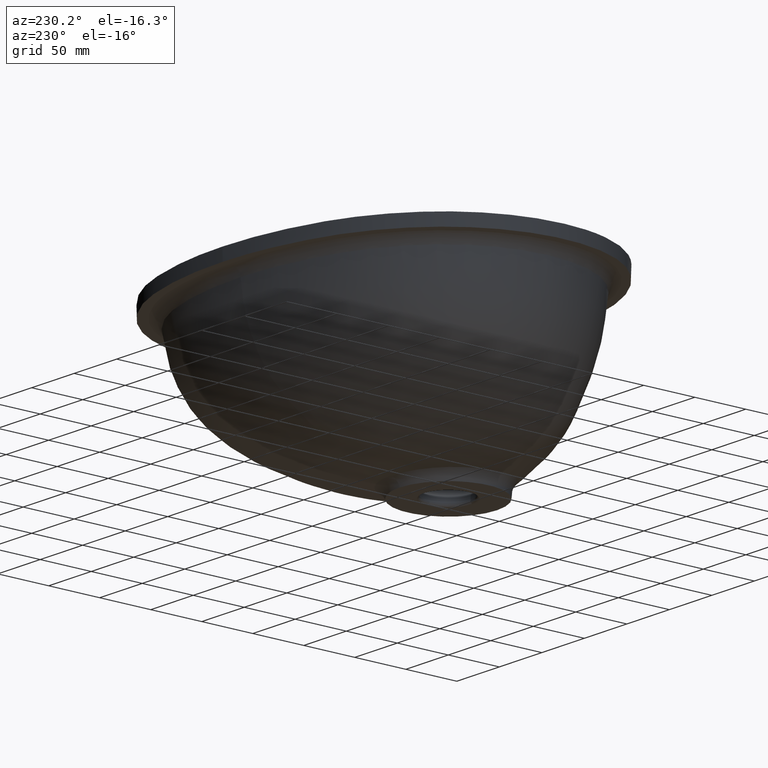
[diagram: clean part render]
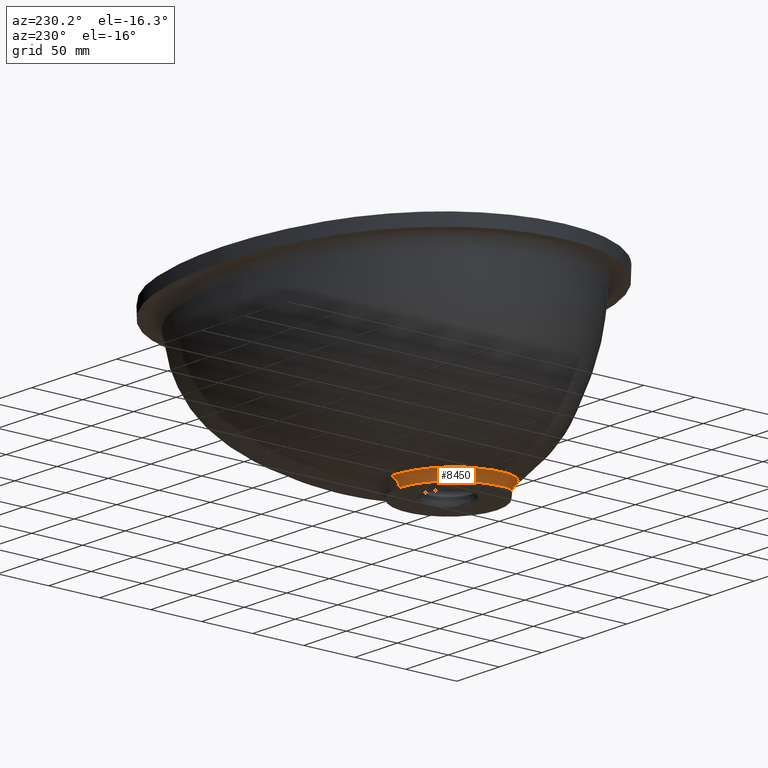
[diagram: same view with one face highlighted and labeled with its STEP entity id]
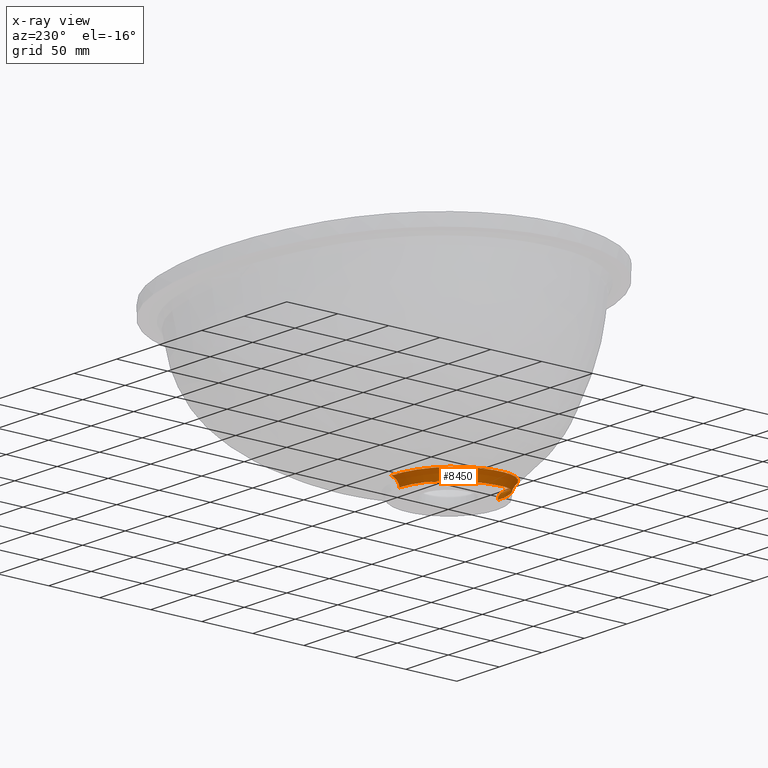
[diagram: x-ray of the same camera — body ghosted, the highlighted face saturated]
A machine part, auxiliary view. The second image highlights one B-rep face of the part: STEP entity #8450.
The next image is the same camera in x-ray: the body ghosted, the highlighted face saturated — about 0% of this face is hidden behind the body in this view.
In plain terms, the highlighted face is a freeform B-spline surface patch.
Its self-contained STEP definition (entity closure, byte-faithful):
#4 = CARTESIAN_POINT ( 'NONE',  ( -1.651484723291576800E-012, 47.98355849915914500, -16.69493183058871800 ) ) ;
#75 = CARTESIAN_POINT ( 'NONE',  ( -6.284882652245053200, 47.27075112057448100, -18.88585151444310400 ) ) ;
#91 = CARTESIAN_POINT ( 'NONE',  ( 4.794256002465258000E-015, -48.72728784986528400, -5.821774171686544500 ) ) ;
#99 = CARTESIAN_POINT ( 'NONE',  ( -32.60775405703462600, 34.85846684452303600, -17.67819926235676300 ) ) ;
#109 = CARTESIAN_POINT ( 'NONE',  ( -49.18675450095849300, 25.89372714503306500, -8.568576147560333900 ) ) ;
#128 = CARTESIAN_POINT ( 'NONE',  ( -19.83566974656168500, -44.07818573549389600, -10.37164150315078900 ) ) ;
#148 = CARTESIAN_POINT ( 'NONE',  ( -54.28136444620005100, 11.67774297453715200, -8.220331746998233800 ) ) ;
#165 = CARTESIAN_POINT ( 'NONE',  ( -19.11274034580327500, -44.40192643876641700, -10.31333426546262500 ) ) ;
#178 = CARTESIAN_POINT ( 'NONE',  ( -27.44180876963656200, 39.03310254539847100, -17.67819926235675600 ) ) ;
#188 = CARTESIAN_POINT ( 'NONE',  ( -52.05757467760659600, 19.39559780693819800, -8.402799328488422100 ) ) ;
#190 = VERTEX_POINT ( 'NONE', #7092 ) ;
#224 = CARTESIAN_POINT ( 'NONE',  ( -54.53103141245460300, -7.773425210642488800, -7.302278464543669600 ) ) ;
#242 = CARTESIAN_POINT ( 'NONE',  ( -8.532536275593537700, -50.89601182746157100, -3.250871982103479100 ) ) ;
#259 = CARTESIAN_POINT ( 'NONE',  ( -50.40985847699813900, -20.35124467259259300, -6.287651768492426500 ) ) ;
#276 = CARTESIAN_POINT ( 'NONE',  ( -47.68880689654583400, -8.557905983029499500, -9.093369314500533200 ) ) ;
#292 = CARTESIAN_POINT ( 'NONE',  ( -31.92788967241984800, -41.61755122038304900, -4.119373704766316800 ) ) ;
#310 = CARTESIAN_POINT ( 'NONE',  ( -45.26879745716150400, -15.78355227485999500, -15.09156870994900000 ) ) ;
#345 = CARTESIAN_POINT ( 'NONE',  ( -50.01292368876095700, -21.10639340289816700, -6.216722687833315500 ) ) ;
#380 = CARTESIAN_POINT ( 'NONE',  ( -52.72155545273996300, -14.64732418870927300, -6.782660484253892000 ) ) ;
#416 = CARTESIAN_POINT ( 'NONE',  ( -54.34141130905143800, -8.729846914517130700, -7.236327676205767100 ) ) ;
#451 = CARTESIAN_POINT ( 'NONE',  ( -48.30583873658457600, 3.111301049346927100, -9.582985112581377900 ) ) ;
#468 = CARTESIAN_POINT ( 'NONE',  ( -46.09127100818879800, 12.42463142147834000, -17.18239904405537600 ) ) ;
#484 = CARTESIAN_POINT ( 'NONE',  ( -46.78122337502973200, 12.33103340632098700, -9.878548080878939400 ) ) ;
#503 = CARTESIAN_POINT ( 'NONE',  ( -32.03900678106534600, -36.02398132861244300, -11.87519893921761800 ) ) ;
#519 = CARTESIAN_POINT ( 'NONE',  ( -45.55247881492950100, 14.27033161844205700, -17.23250606230181200 ) ) ;
#536 = CARTESIAN_POINT ( 'NONE',  ( -40.05692412907704600, 25.91520596641482800, -17.60756509481977300 ) ) ;
#553 = CARTESIAN_POINT ( 'NONE',  ( -48.32586375780706300, -3.130411685881480100, -9.347101245615663200 ) ) ;
#571 = CARTESIAN_POINT ( 'NONE',  ( -47.50093216294006700, -5.542673487181347400, -16.19172364973611200 ) ) ;
#586 = CARTESIAN_POINT ( 'NONE',  ( -28.12045848820239500, 39.28756031639147000, -10.62331978347983800 ) ) ;
#619 = CARTESIAN_POINT ( 'NONE',  ( -47.26761612005093100, 29.26038955927268500, -8.663956889114041700 ) ) ;
#653 = CARTESIAN_POINT ( 'NONE',  ( -48.64599797775689900, 26.86712663822031600, -8.595858616643345900 ) ) ;
#691 = CARTESIAN_POINT ( 'NONE',  ( -19.62348816171611100, 52.38639844541108900, -9.623500310790261000 ) ) ;
#729 = CARTESIAN_POINT ( 'NONE',  ( -29.79728428911821700, 37.19453988478311100, -18.11543220594386800 ) ) ;
#813 = CARTESIAN_POINT ( 'NONE',  ( -1.404724726711566700E-012, 48.34645608571556600, -15.74425115618719900 ) ) ;
#850 = CARTESIAN_POINT ( 'NONE',  ( -7.275556905732548400, 55.67892801729478000, -9.873048805123811900 ) ) ;
#855 = CARTESIAN_POINT ( 'NONE',  ( -9.478295589564850400E-013, 49.33860431032496800, -13.99351430750385600 ) ) ;
#931 = CARTESIAN_POINT ( 'NONE',  ( -3.661493859654169300, 56.05144794601400100, -9.911053283927218500 ) ) ;
#946 = CARTESIAN_POINT ( 'NONE',  ( -6.417923681942905700, -48.32689212952981000, -5.855355565695808700 ) ) ;
#955 = CARTESIAN_POINT ( 'NONE',  ( -15.74837559094879100, 45.07600452275448100, -17.67819926235676700 ) ) ;
#966 = CARTESIAN_POINT ( 'NONE',  ( -37.31660024600945700, 41.39181122702980500, -9.070042907608499400 ) ) ;
#986 = CARTESIAN_POINT ( 'NONE',  ( -21.96569700078375200, -43.03759240283174800, -10.56145303566418500 ) ) ;
#1008 = CARTESIAN_POINT ( 'NONE',  ( -49.98124483578224900, 24.30032576221992000, -8.525753631359105400 ) ) ;
#1026 = CARTESIAN_POINT ( 'NONE',  ( -29.20654574332768000, -38.42171936919879700, -11.42605800050052500 ) ) ;
#1046 = CARTESIAN_POINT ( 'NONE',  ( -55.34371752583982100, 3.744178353151765800, -7.933012796372974400 ) ) ;
#1098 = CARTESIAN_POINT ( 'NONE',  ( -47.36756292605750200, -6.673693775719871500, -16.09008493025545400 ) ) ;
#1117 = CARTESIAN_POINT ( 'NONE',  ( 0.0000000000000000000, 56.05144794566430700, -9.911053283980960400 ) ) ;
#1134 = CARTESIAN_POINT ( 'NONE',  ( -47.00092621912654800, -9.000453964005357600, -15.86562725515668100 ) ) ;
#1149 = CARTESIAN_POINT ( 'NONE',  ( -21.75737000310713400, -47.12651179711292600, -3.571026784734618400 ) ) ;
#1169 = CARTESIAN_POINT ( 'NONE',  ( -46.93764307132124000, -26.46459089078824800, -5.704001403218445200 ) ) ;
#1186 = CARTESIAN_POINT ( 'NONE',  ( -22.58501818750027500, -46.77140436876854300, -3.604149362202741600 ) ) ;
#1188 = CARTESIAN_POINT ( 'NONE',  ( -1.110542320979047500, -48.39305976995483900, -9.642018606113637700 ) ) ;
#1204 = CARTESIAN_POINT ( 'NONE',  ( -43.64344078546471900, -21.20076351064429000, -8.311595167512638900 ) ) ;
#1222 = CARTESIAN_POINT ( 'NONE',  ( -7.176900385633818000, -51.09275084715864100, -3.236343496940333500 ) ) ;
#1241 = CARTESIAN_POINT ( 'NONE',  ( -31.64903894430985100, -36.93011833640618800, -6.964142206150058600 ) ) ;
#1279 = CARTESIAN_POINT ( 'NONE',  ( -47.68087737339811100, -3.535832472134576400, -16.35929431448276700 ) ) ;
#1313 = CARTESIAN_POINT ( 'NONE',  ( -47.64344872846925200, 3.491231554888580400, -16.82297998234811200 ) ) ;
#1338 = CARTESIAN_POINT ( 'NONE',  ( 1.526007621916306000E-015, -50.63801873613788000, -4.037618777647691300 ) ) ;
#1344 = CARTESIAN_POINT ( 'NONE',  ( -55.14415638128009800, -3.485803586040494100, -7.573122819922980800 ) ) ;
#1363 = CARTESIAN_POINT ( 'NONE',  ( -47.75643995640103200, -2.251995875836927000, -16.45632390055197900 ) ) ;
#1379 = CARTESIAN_POINT ( 'NONE',  ( -47.76497139536013500, 1.153987599143250000, -16.68000153886847100 ) ) ;
#1396 = CARTESIAN_POINT ( 'NONE',  ( -38.80105583968283900, 27.72747267921897700, -17.67819926235677400 ) ) ;
#1411 = CARTESIAN_POINT ( 'NONE',  ( -48.24727433451630500, 3.879512559367787300, -9.612451723515572900 ) ) ;
#1431 = CARTESIAN_POINT ( 'NONE',  ( -47.43784263128792100, -6.092845810336709400, -16.14250802800993900 ) ) ;
#1440 = CARTESIAN_POINT ( 'NONE',  ( 7.733865468204868500E-015, -48.83089027220949400, -7.230112663730206900 ) ) ;
#1445 = CARTESIAN_POINT ( 'NONE',  ( -17.69701707135903800, 44.93252366221910400, -10.87664574100155300 ) ) ;
#1466 = CARTESIAN_POINT ( 'NONE',  ( -41.55442266929068000, -24.16403610483446600, -13.91696424999477700 ) ) ;
#1478 = CARTESIAN_POINT ( 'NONE',  ( -16.95369427226373200, 45.21684073187747500, -10.89204879856041500 ) ) ;
#1517 = CARTESIAN_POINT ( 'NONE',  ( -38.12884751561431800, 40.66120887805006800, -9.040902148683667100 ) ) ;
#1554 = CARTESIAN_POINT ( 'NONE',  ( -36.45110066254238000, 31.89151605980512400, -10.37679804321872700 ) ) ;
#1592 = CARTESIAN_POINT ( 'NONE',  ( -27.46830395162200500, 39.74427234250863700, -10.64095577884610200 ) ) ;
#1633 = CARTESIAN_POINT ( 'NONE',  ( -2.247659580973280700E-012, 47.58066863241626300, -18.92769179847974600 ) ) ;
#1676 = CARTESIAN_POINT ( 'NONE',  ( -12.39908484003696100, 45.97986391248233000, -18.74864546823437500 ) ) ;
#1680 = CARTESIAN_POINT ( 'NONE',  ( -4.091188889376671100E-013, 51.43547860997779300, -11.81706675338188400 ) ) ;
#1784 = CARTESIAN_POINT ( 'NONE',  ( -9.377586663598094700, 46.86520311404457600, -17.67819926235676300 ) ) ;
#1797 = CARTESIAN_POINT ( 'NONE',  ( -3.156402162766156500, 48.26681545907905500, -11.08499768563722300 ) ) ;
#1813 = CARTESIAN_POINT ( 'NONE',  ( -13.56699289823504500, -49.95589946556376800, -3.323510341065122600 ) ) ;
#1840 = CARTESIAN_POINT ( 'NONE',  ( 0.0000000000000000000, 56.05144794566430700, -9.911053283980960400 ) ) ;
#1890 = CARTESIAN_POINT ( 'NONE',  ( -26.42559439285337700, -44.93672328125834500, -3.780727128994686700 ) ) ;
#1911 = CARTESIAN_POINT ( 'NONE',  ( -16.65478424986414700, 53.43393239447105000, -9.696110233107535900 ) ) ;
#1930 = CARTESIAN_POINT ( 'NONE',  ( -1.599282459863856400, -48.72728784957580200, -5.821774171747399000 ) ) ;
#1946 = CARTESIAN_POINT ( 'NONE',  ( -41.14618668845367500, 37.66844509256684900, -8.928801622603995000 ) ) ;
#1963 = CARTESIAN_POINT ( 'NONE',  ( -32.33661828969641000, -41.33485491014614900, -4.149089068068283500 ) ) ;
#1981 = CARTESIAN_POINT ( 'NONE',  ( -48.28343555916237800, -24.27235289781939200, -5.917410520280587800 ) ) ;
#1999 = B_SPLINE_CURVE_WITH_KNOTS ( 'NONE', 3,
 ( #6284, #1188, #2877, #9734, #3741, #8050, #8949, #9876, #8878, #5525, #2060, #6318, #7183, #4776, #2301, #4877, #3055, #2337, #503, #3991, #8329, #10736, #10770, #8256, #2232, #10876, #1466, #5696, #5624, #9947, #5660, #9056, #7356, #1431, #571, #6495, #4809, #1363, #9090, #5591, #3158, #8223, #3087, #3921, #9911, #7463, #468, #7429, #10807, #8292, #3956, #9982, #6460, #536, #6528, #1396 ),
 .UNSPECIFIED., .F., .F.,
 ( 4, 2, 2, 2, 2, 2, 2, 2, 2, 2, 2, 2, 2, 2, 2, 2, 2, 2, 2, 2, 2, 2, 2, 2, 2, 2, 2, 4 ),
 ( 0.0000000000000000000, 0.003327098878173355800, 0.006654197756346711500, 0.01330839551269342300, 0.01996259326904013500, 0.02162614270812682200, 0.02328969214721350900, 0.02661679102538688100, 0.03327098878173364400, 0.03659808765990703300, 0.03826163709899372400, 0.03992518653808040800, 0.04657938429442720600, 0.05323358205077399800, 0.05988777980712079600, 0.06654197756346759400, 0.06986907644164099000, 0.07153262588072770200, 0.07319617531981439900, 0.07652327419798778100, 0.07985037307616117700, 0.08650457083250795400, 0.08816812027159466600, 0.08983166971068136400, 0.09315876858885474600, 0.09981296634520155100, 0.1031400652233749600, 0.1064671641015483600 ),
 .UNSPECIFIED. ) ;
#2000 = CARTESIAN_POINT ( 'NONE',  ( -54.67209573669895000, -6.987675883223722900, -7.355020697938365400 ) ) ;
#2016 = CARTESIAN_POINT ( 'NONE',  ( -24.21434729494152900, -46.02667413801150800, -3.674932927210107400 ) ) ;
#2036 = CARTESIAN_POINT ( 'NONE',  ( -41.39489621833524800, -25.40173443937995800, -7.995887180218129900 ) ) ;
#2057 = CARTESIAN_POINT ( 'NONE',  ( -37.54785237409548400, -37.21796139773580600, -4.585877993824481400 ) ) ;
#2060 = CARTESIAN_POINT ( 'NONE',  ( -20.25819678548793200, -43.87844551556806000, -10.40790688583425100 ) ) ;
#2077 = CARTESIAN_POINT ( 'NONE',  ( -45.94175026808689200, -13.55209579558857800, -15.36241201001066000 ) ) ;
#2115 = CARTESIAN_POINT ( 'NONE',  ( -51.83177716118613900, -17.11879061581136000, -6.575688796191196900 ) ) ;
#2150 = CARTESIAN_POINT ( 'NONE',  ( -48.40891984204364500, 0.3684687962145527500, -9.480226701117512500 ) ) ;
#2179 = CARTESIAN_POINT ( 'NONE',  ( -46.20616006126112300, 12.00761458805661000, -17.17096644731520200 ) ) ;
#2214 = CARTESIAN_POINT ( 'NONE',  ( -55.37117854280178600, 0.9361236152099514700, -7.799669640056082500 ) ) ;
#2232 = CARTESIAN_POINT ( 'NONE',  ( -37.96617604047301600, -29.60686109633321500, -13.03049006817557400 ) ) ;
#2249 = CARTESIAN_POINT ( 'NONE',  ( -48.39568406822739600, -1.581694967900969100, -9.407892096427175900 ) ) ;
#2279 = CARTESIAN_POINT ( 'NONE',  ( -46.57221730276101800, 13.09213630758814200, -9.897738682591997500 ) ) ;
#2301 = CARTESIAN_POINT ( 'NONE',  ( -24.15074160244458300, -41.83489576723255300, -10.78417779203584100 ) ) ;
#2315 = CARTESIAN_POINT ( 'NONE',  ( -36.09629102988473900, 31.30431473232060600, -17.82365097227504000 ) ) ;
#2337 = CARTESIAN_POINT ( 'NONE',  ( -31.22057238014550200, -36.75089224483576800, -11.73945434561289500 ) ) ;
#2349 = CARTESIAN_POINT ( 'NONE',  ( -40.67495598379407100, 24.92791999899358000, -17.57090632877575900 ) ) ;
#2350 = EDGE_LOOP ( 'NONE', ( #9970, #9946, #10240, #3283, #4863 ) ) ;
#2385 = CARTESIAN_POINT ( 'NONE',  ( -25.31567555996275900, 40.38158954181970700, -18.30552482335214000 ) ) ;
#2423 = CARTESIAN_POINT ( 'NONE',  ( -29.40581855914623300, 38.33886060031871800, -10.58789787792633200 ) ) ;
#2461 = CARTESIAN_POINT ( 'NONE',  ( -31.70796852863755400, 45.92024916700764700, -9.264713688410608900 ) ) ;
#2538 = CARTESIAN_POINT ( 'NONE',  ( -10.88603064815682400, 47.05709593432698800, -11.00056456751618800 ) ) ;
#2633 = CARTESIAN_POINT ( 'NONE',  ( -21.26343292497451600, -43.39535281602577000, -10.49582313251256100 ) ) ;
#2643 = CARTESIAN_POINT ( 'NONE',  ( -30.45819152724730100, 36.71970899681066000, -17.67819926235676000 ) ) ;
#2656 = CARTESIAN_POINT ( 'NONE',  ( -17.01361429492652600, 53.31769131110916500, -9.687760985940725400 ) ) ;
#2672 = CARTESIAN_POINT ( 'NONE',  ( -6.307692181176960000, -48.00115048328761700, -9.702322284940084500 ) ) ;
#2698 = CARTESIAN_POINT ( 'NONE',  ( -7.398688951005867400E-014, 54.08457645551003200, -10.36238933581319400 ) ) ;
#2709 = CARTESIAN_POINT ( 'NONE',  ( -25.37478501022745900, -41.10507689240141400, -10.92054120818531300 ) ) ;
#2750 = CARTESIAN_POINT ( 'NONE',  ( 1.263087550679356000E-014, -48.39305976995493100, -9.642018606113572000 ) ) ;
#2803 = CARTESIAN_POINT ( 'NONE',  ( -47.41891522032008100, 29.00979805605418300, -8.656685332255930700 ) ) ;
#2821 = CARTESIAN_POINT ( 'NONE',  ( -38.81648081042494900, -29.36131465618452200, -7.672588120677821700 ) ) ;
#2839 = CARTESIAN_POINT ( 'NONE',  ( -45.97532929629658600, 31.28336020633953800, -8.724108376310319100 ) ) ;
#2858 = CARTESIAN_POINT ( 'NONE',  ( -46.66549759449230800, -13.11524465575786800, -8.840561662048443700 ) ) ;
#2877 = CARTESIAN_POINT ( 'NONE',  ( -2.219042491490440300, -48.35436798899257100, -9.647853638193643300 ) ) ;
#2894 = CARTESIAN_POINT ( 'NONE',  ( -32.25138235117962200, -36.39937759884604400, -7.016137616317964300 ) ) ;
#2929 = CARTESIAN_POINT ( 'NONE',  ( -46.69582152026185900, -10.53261939061288500, -15.70553179241258900 ) ) ;
#2965 = CARTESIAN_POINT ( 'NONE',  ( -40.42102837672229000, -34.63572023829446100, -4.861333790965255200 ) ) ;
#3002 = CARTESIAN_POINT ( 'NONE',  ( -47.20112545405611100, 7.376328690162496000, -17.01549763404559100 ) ) ;
#3019 = CARTESIAN_POINT ( 'NONE',  ( -35.49252981325384600, -38.95047872215870700, -4.401131697604858700 ) ) ;
#3038 = CARTESIAN_POINT ( 'NONE',  ( -55.36568858767750400, 0.4896598957754491600, -7.778161769127844800 ) ) ;
#3055 = CARTESIAN_POINT ( 'NONE',  ( -28.69994349866727000, -38.83998690303617000, -11.34757771871899800 ) ) ;
#3070 = CARTESIAN_POINT ( 'NONE',  ( -54.81554187948548000, -6.102686374544086700, -7.413341381353665900 ) ) ;
#3087 = CARTESIAN_POINT ( 'NONE',  ( -47.19567845862457000, 7.566970513751184200, -17.02617055533627900 ) ) ;
#3103 = CARTESIAN_POINT ( 'NONE',  ( -54.11758002852731400, 12.42143852180920000, -8.240526588229384300 ) ) ;
#3136 = CARTESIAN_POINT ( 'NONE',  ( -45.31067302286447100, 15.01485264047356300, -17.25207122734268900 ) ) ;
#3158 = CARTESIAN_POINT ( 'NONE',  ( -47.73726723125378200, 2.121564242292480100, -16.74206911439430500 ) ) ;
#3172 = CARTESIAN_POINT ( 'NONE',  ( -31.62705430755785600, 35.68744188677949600, -18.03400278617589300 ) ) ;
#3186 = EDGE_CURVE ( 'NONE', #8339, #9019, #5644, .T. ) ;
#3207 = CARTESIAN_POINT ( 'NONE',  ( -27.26819005511959300, 39.07478149918032500, -18.22436311571129900 ) ) ;
#3245 = CARTESIAN_POINT ( 'NONE',  ( -29.43458252698543400, 47.46975870596714500, -9.339335810821493700 ) ) ;
#3282 = CARTESIAN_POINT ( 'NONE',  ( -27.87455979604077400, 48.42381722649029300, -9.388723623890689000 ) ) ;
#3283 = ORIENTED_EDGE ( 'NONE', *, *, #6270, .T. ) ;
#3322 = CARTESIAN_POINT ( 'NONE',  ( -27.90962086117768200, 38.62225842998316900, -18.19719512009135400 ) ) ;
#3430 = CARTESIAN_POINT ( 'NONE',  ( -36.50200698241109600, 30.74987836164740800, -17.67819926235676700 ) ) ;
#3443 = CARTESIAN_POINT ( 'NONE',  ( -10.88030740843033700, 46.35887387295035500, -18.78748720709929600 ) ) ;
#3554 = CARTESIAN_POINT ( 'NONE',  ( -20.03763772830120300, 52.22436170080173000, -9.612742911954461200 ) ) ;
#3594 = CARTESIAN_POINT ( 'NONE',  ( -1.801311574603814400, 56.05144697344347500, -9.911053430594089200 ) ) ;
#3612 = CARTESIAN_POINT ( 'NONE',  ( -27.95886531590305800, -39.35775351696802500, -11.24925071601958800 ) ) ;
#3631 = CARTESIAN_POINT ( 'NONE',  ( -55.31913746105449500, -1.564990563990318600, -7.680037287855745900 ) ) ;
#3669 = CARTESIAN_POINT ( 'NONE',  ( -54.95670200722015200, -5.114346912577394400, -7.476031963332669500 ) ) ;
#3687 = CARTESIAN_POINT ( 'NONE',  ( -42.88038215010452300, -21.55170127837135000, -14.30292198010330500 ) ) ;
#3704 = CARTESIAN_POINT ( 'NONE',  ( -35.29600037059370300, 43.16272643478397700, -9.142094316424744300 ) ) ;
#3723 = CARTESIAN_POINT ( 'NONE',  ( -46.86685154230103500, -12.36069123725042300, -8.884850601556681900 ) ) ;
#3741 = CARTESIAN_POINT ( 'NONE',  ( -5.538332030144330200, -48.08359657984916400, -9.689473118493586100 ) ) ;
#3756 = CARTESIAN_POINT ( 'NONE',  ( -31.60171535549927700, -36.40839739493485900, -11.80335615881006800 ) ) ;
#3774 = CARTESIAN_POINT ( 'NONE',  ( -28.93489041020199100, -43.52746669350831600, -3.922251451811215700 ) ) ;
#3793 = CARTESIAN_POINT ( 'NONE',  ( -47.13543734025280700, -8.228702705224845800, -15.94232158256617800 ) ) ;
#3812 = CARTESIAN_POINT ( 'NONE',  ( 0.0000000000000000000, -51.53017549914162700, -3.204562530702079300 ) ) ;
#3833 = CARTESIAN_POINT ( 'NONE',  ( -44.61701101428292300, -19.03267996751866400, -8.463700509495065900 ) ) ;
#3869 = CARTESIAN_POINT ( 'NONE',  ( -51.71665400415413000, 20.23920463430533800, -8.423578583016221100 ) ) ;
#3885 = CARTESIAN_POINT ( 'NONE',  ( 0.0000000000000000000, -51.53017549914162700, -3.204562530702079300 ) ) ;
#3901 = CARTESIAN_POINT ( 'NONE',  ( -47.62186005068110700, -4.319418070875682000, -16.29668479464268700 ) ) ;
#3921 = CARTESIAN_POINT ( 'NONE',  ( -46.62285926437252900, 10.27755732906178600, -17.11794926890411300 ) ) ;
#3937 = CARTESIAN_POINT ( 'NONE',  ( -47.33458618311091500, 10.02574452769441600, -9.815299669422843800 ) ) ;
#3956 = CARTESIAN_POINT ( 'NONE',  ( -43.30602751050622600, 20.15057826684017400, -17.40389971612236400 ) ) ;
#3972 = CARTESIAN_POINT ( 'NONE',  ( -48.12908485279503900, -5.451192678351944200, -9.244754659227902800 ) ) ;
#3991 = CARTESIAN_POINT ( 'NONE',  ( -33.23338579221047000, -34.88676062988327700, -12.08567330430213000 ) ) ;
#4003 = CARTESIAN_POINT ( 'NONE',  ( -45.86796067173655400, 15.36403376233581000, -9.951849127827442100 ) ) ;
#4036 = CARTESIAN_POINT ( 'NONE',  ( -21.33213926280557600, 43.35449229615856800, -10.79609655852054200 ) ) ;
#4072 = CARTESIAN_POINT ( 'NONE',  ( -44.14154950652301300, 19.81020418787250000, -10.05843890896289800 ) ) ;
#4109 = CARTESIAN_POINT ( 'NONE',  ( -19.80999886094309300, 43.32881921654284700, -18.51544230490686300 ) ) ;
#4148 = CARTESIAN_POINT ( 'NONE',  ( -36.77929268331661200, 41.91101190272994600, -9.089838795479904500 ) ) ;
#4185 = CARTESIAN_POINT ( 'NONE',  ( -17.63274501000522700, 44.23164152299206400, -18.58973993962095500 ) ) ;
#4289 = CARTESIAN_POINT ( 'NONE',  ( -25.09660816591655000, 40.62036514629178200, -17.67819926235676300 ) ) ;
#4329 = CARTESIAN_POINT ( 'NONE',  ( -29.71915341515362400, 37.32226551263048700, -17.67819926235676000 ) ) ;
#4357 = CARTESIAN_POINT ( 'NONE',  ( -12.71640658786701500, -47.13550492235670900, -5.959270721894523800 ) ) ;
#4366 = CARTESIAN_POINT ( 'NONE',  ( -13.03334631094802500, 45.94322407263399600, -17.67819926235676300 ) ) ;
#4395 = CARTESIAN_POINT ( 'NONE',  ( -15.47853145189544800, -45.92217996324630700, -10.04230316213347200 ) ) ;
#4413 = CARTESIAN_POINT ( 'NONE',  ( -51.41667048663582300, 21.05126867342936600, -8.442814650455153100 ) ) ;
#4431 = CARTESIAN_POINT ( 'NONE',  ( -27.94253061065272400, -44.10354531202584400, -3.863930365745198000 ) ) ;
#4492 = CARTESIAN_POINT ( 'NONE',  ( -7.130256411372730700, 55.60605934046752500, -9.868946962749268100 ) ) ;
#4512 = CARTESIAN_POINT ( 'NONE',  ( -7.869316021588714300, -47.76613193833052400, -9.739088240642477200 ) ) ;
#4529 = CARTESIAN_POINT ( 'NONE',  ( -53.53774527860983300, -12.10396211817121800, -6.988857286771208000 ) ) ;
#4546 = CARTESIAN_POINT ( 'NONE',  ( -53.73564505703252800, -11.29225540643060000, -7.049477034845000200 ) ) ;
#4564 = CARTESIAN_POINT ( 'NONE',  ( -46.46743699139693000, 30.53504412427334800, -8.701573676049029900 ) ) ;
#4582 = CARTESIAN_POINT ( 'NONE',  ( -42.19350459664705300, -24.03294203670296600, -8.102536715253190600 ) ) ;
#4616 = CARTESIAN_POINT ( 'NONE',  ( -46.14818255686656600, -12.80277813662892200, -15.45067820246562100 ) ) ;
#4633 = CARTESIAN_POINT ( 'NONE',  ( -41.45621469414092500, -33.56028013093599300, -4.975508892263718500 ) ) ;
#4651 = CARTESIAN_POINT ( 'NONE',  ( -47.81681784069592600, -7.789364049926899900, -9.132017092185117600 ) ) ;
#4668 = CARTESIAN_POINT ( 'NONE',  ( -27.39459186403646700, -44.41309853178922400, -3.832791815238804300 ) ) ;
#4685 = CARTESIAN_POINT ( 'NONE',  ( -47.23236456917656100, -10.84644448929278000, -8.971004241846110000 ) ) ;
#4722 = CARTESIAN_POINT ( 'NONE',  ( -43.62789455143789800, 19.38730583176043600, -17.38009896610993400 ) ) ;
#4757 = CARTESIAN_POINT ( 'NONE',  ( -47.69814145836601000, 2.712817921539567600, -16.77671176203827500 ) ) ;
#4776 = CARTESIAN_POINT ( 'NONE',  ( -23.20149569362369100, -42.37900574812107400, -10.68293676269330600 ) ) ;
#4790 = CARTESIAN_POINT ( 'NONE',  ( -47.42306787727042700, 5.824160049263811700, -16.94851030720875000 ) ) ;
#4798 = B_SPLINE_CURVE_WITH_KNOTS ( 'NONE', 3,
 ( #10848, #9920, #1440, #5571, #1338, #9854 ),
 .UNSPECIFIED., .F., .F.,
 ( 4, 2, 4 ),
 ( 0.0000000000000000000, 0.5000000000000000000, 1.000000000000000000 ),
 .UNSPECIFIED. ) ;
#4809 = CARTESIAN_POINT ( 'NONE',  ( -47.65202638842843200, -3.896536636989422300, -16.33023234028620500 ) ) ;
#4824 = CARTESIAN_POINT ( 'NONE',  ( -48.36635291996623200, 1.937353249018993100, -9.538501670412415500 ) ) ;
#4857 = CARTESIAN_POINT ( 'NONE',  ( -52.64641340906263200, 17.65955356975374400, -8.363532839632849700 ) ) ;
#4863 = ORIENTED_EDGE ( 'NONE', *, *, #3186, .F. ) ;
#4877 = CARTESIAN_POINT ( 'NONE',  ( -26.93270902877570100, -40.11096767067499500, -11.10691982384734400 ) ) ;
#4890 = CARTESIAN_POINT ( 'NONE',  ( -23.01836642317806500, 50.97210162274647200, -9.532717127026753400 ) ) ;
#4927 = CARTESIAN_POINT ( 'NONE',  ( -41.94717525046368700, 24.05352287373946400, -10.16531756658119300 ) ) ;
#4966 = CARTESIAN_POINT ( 'NONE',  ( -21.22359894072582200, 42.65884973225036000, -18.46411279531767100 ) ) ;
#5005 = CARTESIAN_POINT ( 'NONE',  ( -44.25766908747193900, 33.89855063585432000, -8.802808557224656400 ) ) ;
#5040 = CARTESIAN_POINT ( 'NONE',  ( -15.44883014033148600, 45.75008736450022400, -10.92181454167103800 ) ) ;
#5086 = CARTESIAN_POINT ( 'NONE',  ( -7.482084093769686800E-013, 49.96771827151791700, -13.19369931211983300 ) ) ;
#5213 = CARTESIAN_POINT ( 'NONE',  ( -24.03838680087477200, -41.91636847883265200, -10.76864245790381400 ) ) ;
#5222 = CARTESIAN_POINT ( 'NONE',  ( -20.13897638314868400, 43.30822908206397400, -17.67819926235676700 ) ) ;
#5232 = CARTESIAN_POINT ( 'NONE',  ( -37.96816222336916300, 40.78287670122293900, -9.046320725211670000 ) ) ;
#5252 = CARTESIAN_POINT ( 'NONE',  ( -19.48342273648441000, -44.63483693798452400, -6.195842179180130100 ) ) ;
#5272 = CARTESIAN_POINT ( 'NONE',  ( -53.67573533346288200, 14.30507403421581700, -8.289689224275985400 ) ) ;
#5292 = CARTESIAN_POINT ( 'NONE',  ( -30.89806558956343400, -42.30259394048899000, -4.048112609985042600 ) ) ;
#5302 = CARTESIAN_POINT ( 'NONE',  ( -14.84461258898479100, 45.38458448693768300, -17.67819926235675600 ) ) ;
#5313 = CARTESIAN_POINT ( 'NONE',  ( -43.43435782411568600, 34.95463997400220500, -8.837175126842016200 ) ) ;
#5366 = CARTESIAN_POINT ( 'NONE',  ( -3.148524036966989100, -48.31559018308499300, -9.653660033195395200 ) ) ;
#5383 = CARTESIAN_POINT ( 'NONE',  ( -51.83375798387687200, -17.11466833768699300, -6.575822187548245000 ) ) ;
#5401 = CARTESIAN_POINT ( 'NONE',  ( -38.05134816330882300, -29.58014362484121700, -13.04060571108911400 ) ) ;
#5436 = CARTESIAN_POINT ( 'NONE',  ( -45.49823059013363000, -16.83610415219741100, -8.611422084855384200 ) ) ;
#5467 = CARTESIAN_POINT ( 'NONE',  ( -48.76647950490459500, -23.43880823124342100, -5.997431632790901200 ) ) ;
#5483 = CARTESIAN_POINT ( 'NONE',  ( -43.78630682963982700, -30.89447822127924000, -5.257685566026558500 ) ) ;
#5501 = CARTESIAN_POINT ( 'NONE',  ( -36.83701425831936400, -31.84899117809606000, -7.450047402561563300 ) ) ;
#5521 = CARTESIAN_POINT ( 'NONE',  ( -1.801311574604017800, -51.53017493590152000, -3.204563056630530300 ) ) ;
#5525 = CARTESIAN_POINT ( 'NONE',  ( -19.75508558692711600, -44.11127896604497100, -10.36576402046528900 ) ) ;
#5542 = CARTESIAN_POINT ( 'NONE',  ( -47.39659853833209300, -10.08615367450796000, -9.012823407887536200 ) ) ;
#5571 = CARTESIAN_POINT ( 'NONE',  ( 3.427985105560547600E-015, -49.90033672557551400, -5.035576292471433600 ) ) ;
#5575 = CARTESIAN_POINT ( 'NONE',  ( -55.28440851699550500, -1.731299197782383300, -7.667890537081588900 ) ) ;
#5591 = CARTESIAN_POINT ( 'NONE',  ( -47.77931974734463700, 1.029883321259234900, -16.67323286110704600 ) ) ;
#5606 = CARTESIAN_POINT ( 'NONE',  ( -46.75159500435565000, 9.699450416826787000, -17.09919104762336400 ) ) ;
#5624 = CARTESIAN_POINT ( 'NONE',  ( -44.39666064131351000, -18.22852202914416600, -14.77530071450408600 ) ) ;
#5640 = CARTESIAN_POINT ( 'NONE',  ( -53.68612957641526900, 14.17777504712698400, -8.284915168301395700 ) ) ;
#5644 = B_SPLINE_CURVE_WITH_KNOTS ( 'NONE', 3,
 ( #1117, #3594, #7828, #4492, #9551, #9590, #10492, #1911, #8692, #7040, #3554, #7905, #10454, #7976, #7075, #3704, #9697, #966, #5232, #1946, #5313, #2839, #4564, #2803, #7869, #109, #1008, #4413, #188, #10415, #5272, #148, #6135, #8805, #6174, #7940, #1046, #8769, #3631, #7000, #3669, #9663, #224, #9628, #4529, #10528, #5383, #259, #7109, #1981, #7181, #9766, #6425, #5483, #4633, #6281, #2057, #8984, #3019, #9802, #292, #3774, #4668, #6390, #2016, #1186, #1149, #8013, #10668, #6353, #1222, #10702, #5521, #3812 ),
 .UNSPECIFIED., .F., .F.,
 ( 4, 2, 2, 2, 2, 2, 2, 2, 2, 2, 2, 2, 2, 2, 2, 2, 2, 2, 2, 2, 2, 2, 2, 2, 2, 2, 2, 2, 2, 2, 2, 2, 2, 2, 2, 2, 4 ),
 ( -6.000000000668925200E-008, 0.005403874723812172900, 0.01080780944762435200, 0.01621174417143653200, 0.01891371153334262000, 0.02161567889524871100, 0.03242354834287309400, 0.03782748306668529800, 0.04052945042859139300, 0.04323141779049748100, 0.05403928723812186100, 0.05674125460002796300, 0.05944322196193405800, 0.06484715668574625400, 0.07025109140955845800, 0.07565502613337064800, 0.07835699349527673600, 0.08105896085718283800, 0.08646289558099502800, 0.09186683030480723200, 0.09456879766671333300, 0.09727076502861940800, 0.1026746997524316300, 0.1080786344762438200, 0.1134825692000560000, 0.1161845365619621200, 0.1188865039238682200, 0.1296943733714926700, 0.1323963407333987900, 0.1350983080953049000, 0.1405022428191171100, 0.1459061775429293100, 0.1486081449048354000, 0.1513101122667414900, 0.1621179817143658700, 0.1675219164381780700, 0.1729258511619902500 ),
 .UNSPECIFIED. ) ;
#5660 = CARTESIAN_POINT ( 'NONE',  ( -46.39254848668347400, -12.02685712728338200, -15.54827932397279400 ) ) ;
#5676 = CARTESIAN_POINT ( 'NONE',  ( -55.32618690219264600, 3.623363588074859400, -7.926890528483205900 ) ) ;
#5696 = CARTESIAN_POINT ( 'NONE',  ( -43.54517914986242700, -20.23907007511294900, -14.49665118031445000 ) ) ;
#5709 = CARTESIAN_POINT ( 'NONE',  ( -45.33457888596562000, 16.86424200523075700, -9.987248215126687300 ) ) ;
#5743 = CARTESIAN_POINT ( 'NONE',  ( -32.45463897899926300, 45.38397499807218300, -9.239744460588479300 ) ) ;
#5779 = CARTESIAN_POINT ( 'NONE',  ( -32.78751305029806000, 34.62997288573850300, -17.98074652356601900 ) ) ;
#5818 = CARTESIAN_POINT ( 'NONE',  ( -41.86603656770972700, 22.88434003381046000, -17.49753215226979500 ) ) ;
#5858 = CARTESIAN_POINT ( 'NONE',  ( -33.08507448285594400, 35.25236202705352900, -10.48157707234615500 ) ) ;
#5983 = CARTESIAN_POINT ( 'NONE',  ( -12.41407112009069300, 46.68012562638955400, -10.97659762115243100 ) ) ;
#6008 = CARTESIAN_POINT ( 'NONE',  ( -37.69292921905730500, 29.27815432199834700, -17.67819926235676000 ) ) ;
#6021 = CARTESIAN_POINT ( 'NONE',  ( -1.365293506901546700E-013, 48.26681545878651000, -11.08499768569373800 ) ) ;
#6084 = CARTESIAN_POINT ( 'NONE',  ( -28.21008900096934700, 38.47951481533925700, -17.67819926235676000 ) ) ;
#6114 = CARTESIAN_POINT ( 'NONE',  ( -21.68306123610340600, -43.59905860392828500, -6.297601548548515300 ) ) ;
#6135 = CARTESIAN_POINT ( 'NONE',  ( -54.46107007147317300, 10.79601810776098400, -8.195312981994343100 ) ) ;
#6154 = CARTESIAN_POINT ( 'NONE',  ( -23.30141168414436600, -46.45111730828077200, -3.634404747261265700 ) ) ;
#6174 = CARTESIAN_POINT ( 'NONE',  ( -54.90356146380129600, 8.154638150176476000, -8.111295691866546400 ) ) ;
#6229 = CARTESIAN_POINT ( 'NONE',  ( -16.85579787187241500, -49.02815695301570300, -3.398561866472655300 ) ) ;
#6264 = CARTESIAN_POINT ( 'NONE',  ( -42.52807469602660000, -22.25845683799794700, -14.19916749629728200 ) ) ;
#6270 = EDGE_CURVE ( 'NONE', #10378, #9019, #4798, .T. ) ;
#6281 = CARTESIAN_POINT ( 'NONE',  ( -38.21367482094409200, -36.61943850373497600, -4.649766885604986300 ) ) ;
#6284 = CARTESIAN_POINT ( 'NONE',  ( -3.240491424248209400E-013, -48.39305976995483900, -9.642018606113625300 ) ) ;
#6300 = CARTESIAN_POINT ( 'NONE',  ( -36.48343213317718200, -38.13562690040129900, -4.487906910870560900 ) ) ;
#6318 = CARTESIAN_POINT ( 'NONE',  ( -21.25251951901067900, -43.39702027344938500, -10.49561093140403200 ) ) ;
#6335 = CARTESIAN_POINT ( 'NONE',  ( -37.15446352016018500, -37.56234146527710700, -4.549155061405517800 ) ) ;
#6353 = CARTESIAN_POINT ( 'NONE',  ( -8.945607247278310600, -50.83254497923101700, -3.255619591115750400 ) ) ;
#6372 = CARTESIAN_POINT ( 'NONE',  ( -41.42502013546296500, -24.34178473952341500, -13.88648164989287000 ) ) ;
#6390 = CARTESIAN_POINT ( 'NONE',  ( -25.01772687020396200, -45.63644463888511600, -3.712647582259485500 ) ) ;
#6409 = CARTESIAN_POINT ( 'NONE',  ( -52.03996243121601900, 19.38505331712428900, -8.403191810803637200 ) ) ;
#6425 = CARTESIAN_POINT ( 'NONE',  ( -46.36093431451021000, -27.28078537128115500, -5.621784432149096000 ) ) ;
#6441 = CARTESIAN_POINT ( 'NONE',  ( -47.78543423839970900, -0.01656645582856600500, -16.60541985737597400 ) ) ;
#6460 = CARTESIAN_POINT ( 'NONE',  ( -41.22378458545168900, 24.02781916339053900, -17.53790073096091400 ) ) ;
#6476 = CARTESIAN_POINT ( 'NONE',  ( -47.46532391541478500, -5.888207285194909000, -16.16174362229754300 ) ) ;
#6495 = CARTESIAN_POINT ( 'NONE',  ( -47.60794478438252500, -4.445024009852289700, -16.28556475267370700 ) ) ;
#6511 = CARTESIAN_POINT ( 'NONE',  ( -47.76108261247781400, -1.970221933406288300, -16.47471692157872200 ) ) ;
#6528 = CARTESIAN_POINT ( 'NONE',  ( -39.44304668782346100, 26.83441922890697000, -17.64277361424868600 ) ) ;
#6543 = CARTESIAN_POINT ( 'NONE',  ( -47.78219550935941100, -1.188231933700795200, -16.52834027744064800 ) ) ;
#6577 = CARTESIAN_POINT ( 'NONE',  ( -33.92531289498125300, 44.27139596806191700, -9.189734419848028000 ) ) ;
#6613 = CARTESIAN_POINT ( 'NONE',  ( -49.91995451367296300, 24.43206387701647100, -8.529257383488232600 ) ) ;
#6648 = CARTESIAN_POINT ( 'NONE',  ( -38.46752119637164200, 29.44190753568206300, -10.30763546167411900 ) ) ;
#6685 = CARTESIAN_POINT ( 'NONE',  ( -48.20065972286271700, 27.67049425702612500, -8.618362384214076900 ) ) ;
#6723 = CARTESIAN_POINT ( 'NONE',  ( -42.96632828031594200, 20.80372974194250100, -17.42613925160693000 ) ) ;
#6851 = FACE_OUTER_BOUND ( 'NONE', #2350, .T. ) ;
#6901 = CARTESIAN_POINT ( 'NONE',  ( -21.70354084614744000, -47.14865590851967900, -3.568970838492274900 ) ) ;
#6939 = CARTESIAN_POINT ( 'NONE',  ( -6.835240140376937400, -51.13372768350182400, -3.233323675230156600 ) ) ;
#6948 = CARTESIAN_POINT ( 'NONE',  ( -33.95942681805248500, 33.54004169576159500, -17.67819926235676300 ) ) ;
#6978 = CARTESIAN_POINT ( 'NONE',  ( -24.09000066670507000, -46.08520372484775200, -3.669316035771394100 ) ) ;
#7000 = CARTESIAN_POINT ( 'NONE',  ( -55.06590706623894200, -4.226539497842828100, -7.530357526968577600 ) ) ;
#7019 = CARTESIAN_POINT ( 'NONE',  ( -29.81018676066018400, -38.47093662148244400, -6.812002931628886600 ) ) ;
#7040 = CARTESIAN_POINT ( 'NONE',  ( -19.19971673074493500, 52.54726735410044100, -9.634305579551146100 ) ) ;
#7058 = CARTESIAN_POINT ( 'NONE',  ( 3.697785493223492800E-029, -51.53017549914171300, -3.204562530702029600 ) ) ;
#7075 = CARTESIAN_POINT ( 'NONE',  ( -33.19790169478589800, 44.85791505654636800, -9.214981492518029800 ) ) ;
#7092 = CARTESIAN_POINT ( 'NONE',  ( -38.80105583968283900, 27.72747267921897700, -17.67819926235677400 ) ) ;
#7093 = CARTESIAN_POINT ( 'NONE',  ( -35.12433441860033400, -39.24347322689840200, -4.370018288339520200 ) ) ;
#7109 = CARTESIAN_POINT ( 'NONE',  ( -49.61194809663581400, -21.93856745013639700, -6.140402403217852800 ) ) ;
#7126 = CARTESIAN_POINT ( 'NONE',  ( -48.03708426743367700, -6.236903503580066400, -9.207540830599448600 ) ) ;
#7161 = CARTESIAN_POINT ( 'NONE',  ( -46.00858507257546400, -15.35770540888359100, -8.705654263059782800 ) ) ;
#7181 = CARTESIAN_POINT ( 'NONE',  ( -47.81941905120033500, -25.04068705854769300, -5.842877024717153300 ) ) ;
#7183 = CARTESIAN_POINT ( 'NONE',  ( -21.74397370956502900, -43.14837189234952300, -10.54118091281501500 ) ) ;
#7200 = CARTESIAN_POINT ( 'NONE',  ( -40.62723218886792900, -25.68478194637207700, -13.67566185775372200 ) ) ;
#7235 = CARTESIAN_POINT ( 'NONE',  ( -48.32175187694711100, -24.20706422408045500, -5.923672640264518600 ) ) ;
#7274 = CARTESIAN_POINT ( 'NONE',  ( -48.41230247187079500, -0.8023240763580437000, -9.436859564813691000 ) ) ;
#7307 = CARTESIAN_POINT ( 'NONE',  ( -55.06002255794657400, 7.133312194212102500, -8.077467715445207500 ) ) ;
#7339 = CARTESIAN_POINT ( 'NONE',  ( -47.75182291067640300, 1.543867836492027100, -16.70439847837997900 ) ) ;
#7356 = CARTESIAN_POINT ( 'NONE',  ( -47.22126688496378900, -7.733091114356080100, -15.99139889230648000 ) ) ;
#7372 = CARTESIAN_POINT ( 'NONE',  ( -48.01719225259945000, 6.184085978553281600, -9.696327202781510800 ) ) ;
#7407 = CARTESIAN_POINT ( 'NONE',  ( -47.16222360113866300, 10.79896919796282100, -9.837347141435584400 ) ) ;
#7429 = CARTESIAN_POINT ( 'NONE',  ( -45.63952653749219500, 14.01268206802358500, -17.22595096423573200 ) ) ;
#7442 = CARTESIAN_POINT ( 'NONE',  ( -14.65729778998811900, 45.29605681221910600, -18.68385248233275000 ) ) ;
#7463 = CARTESIAN_POINT ( 'NONE',  ( -46.23302497567406300, 11.89170766656563500, -17.16731711195715700 ) ) ;
#7476 = CARTESIAN_POINT ( 'NONE',  ( -42.34026490662186100, 23.35771402282001200, -10.14750374422204800 ) ) ;
#7512 = CARTESIAN_POINT ( 'NONE',  ( -25.48321166029533600, 41.06303242223226800, -10.69358784898422400 ) ) ;
#7552 = CARTESIAN_POINT ( 'NONE',  ( -29.17336139309073700, 37.68281508116634600, -18.14276582020549400 ) ) ;
#7580 = CARTESIAN_POINT ( 'NONE',  ( -1.972152263052529500E-028, 47.77014678238243300, -17.67819926235676700 ) ) ;
#7592 = CARTESIAN_POINT ( 'NONE',  ( -46.77921961229182600, 30.04772642767224500, -8.687075613264019200 ) ) ;
#7620 = EDGE_CURVE ( 'NONE', #8625, #190, #9952, .T. ) ;
#7663 = CARTESIAN_POINT ( 'NONE',  ( -3.240491424248209400E-013, -48.39305976995483900, -9.642018606113625300 ) ) ;
#7721 = CARTESIAN_POINT ( 'NONE',  ( -1.972152263052529500E-028, 47.77014678238243300, -17.67819926235676700 ) ) ;
#7769 = CARTESIAN_POINT ( 'NONE',  ( -1.572518642867249500, -48.39305976993487200, -9.642018606342812600 ) ) ;
#7779 = CARTESIAN_POINT ( 'NONE',  ( -18.41565168002831500, 44.07528282671454200, -17.67819926235676300 ) ) ;
#7828 = CARTESIAN_POINT ( 'NONE',  ( -3.588753651185522000, 55.96055415218254600, -9.901763711115526300 ) ) ;
#7837 = CARTESIAN_POINT ( 'NONE',  ( -1.744907200318338900E-014, 55.05653650651072400, -10.06108871804456200 ) ) ;
#7848 = CARTESIAN_POINT ( 'NONE',  ( -24.52439770395476200, -42.07458113200463100, -6.449532079570564800 ) ) ;
#7859 = CARTESIAN_POINT ( 'NONE',  ( -38.80105583968283900, 27.72747267921897700, -17.67819926235677400 ) ) ;
#7869 = CARTESIAN_POINT ( 'NONE',  ( -47.87638861747188900, 28.23574624081773600, -8.634418176498606100 ) ) ;
#7905 = CARTESIAN_POINT ( 'NONE',  ( -24.16901931891234800, 50.51694754946574100, -9.502718938124022700 ) ) ;
#7940 = CARTESIAN_POINT ( 'NONE',  ( -55.22629438097290900, 5.509903128296707900, -8.013387541808874900 ) ) ;
#7957 = CARTESIAN_POINT ( 'NONE',  ( -34.01194341171562700, -34.74083223407215800, -7.176437165564779600 ) ) ;
#7976 = CARTESIAN_POINT ( 'NONE',  ( -31.75593678344297600, 45.91183647404395200, -9.263559341588425900 ) ) ;
#7994 = CARTESIAN_POINT ( 'NONE',  ( -33.43215838655494600, -35.30558204823126500, -7.122195503574190800 ) ) ;
#8013 = CARTESIAN_POINT ( 'NONE',  ( -17.59911725373029200, -48.79595929640947800, -3.418143187784250500 ) ) ;
#8031 = CARTESIAN_POINT ( 'NONE',  ( -42.78477554558688200, -32.07778609216621400, -5.133688408780090000 ) ) ;
#8050 = CARTESIAN_POINT ( 'NONE',  ( -8.818404930479376300, -47.62337127531462500, -9.761818606275088700 ) ) ;
#8066 = CARTESIAN_POINT ( 'NONE',  ( -46.52521266565673100, -11.29304244027399700, -15.62228886232096400 ) ) ;
#8104 = CARTESIAN_POINT ( 'NONE',  ( -43.29244925109613700, -21.91886639632727800, -8.259535916842304800 ) ) ;
#8140 = CARTESIAN_POINT ( 'NONE',  ( -44.51379742117498500, 17.21924204802797200, -17.31445881738182300 ) ) ;
#8170 = CARTESIAN_POINT ( 'NONE',  ( -54.81936864997079800, 8.886358012961647300, -8.138220323510708500 ) ) ;
#8205 = CARTESIAN_POINT ( 'NONE',  ( -55.27760939998827900, 4.500902121289114700, -7.967076322908249100 ) ) ;
#8223 = CARTESIAN_POINT ( 'NONE',  ( -47.50016858933594900, 5.392012129891112300, -16.93253537571166600 ) ) ;
#8238 = CARTESIAN_POINT ( 'NONE',  ( -54.31165835095548300, 11.53513338964236800, -8.216401996425407400 ) ) ;
#8256 = CARTESIAN_POINT ( 'NONE',  ( -36.61283370619460700, -31.30566118757575100, -12.73447722810704100 ) ) ;
#8271 = CARTESIAN_POINT ( 'NONE',  ( -52.92879754967393800, 16.79058132762508700, -8.344505312677009500 ) ) ;
#8292 = CARTESIAN_POINT ( 'NONE',  ( -44.18853367541471800, 18.14732913457457600, -17.34023543044782700 ) ) ;
#8306 = CARTESIAN_POINT ( 'NONE',  ( -40.25285417259987500, 25.59981826559996400, -17.59590111702473800 ) ) ;
#8329 = CARTESIAN_POINT ( 'NONE',  ( -33.62579185537605000, -34.49997175444121900, -12.15692777881376700 ) ) ;
#8339 = VERTEX_POINT ( 'NONE', #10011 ) ;
#8342 = CARTESIAN_POINT ( 'NONE',  ( -34.65119215945312400, 43.69348915073509000, -9.164627217834125300 ) ) ;
#8379 = CARTESIAN_POINT ( 'NONE',  ( -30.04068828932433600, 37.84553184676357800, -10.57006461958052600 ) ) ;
#8417 = CARTESIAN_POINT ( 'NONE',  ( -20.48037797867246100, 52.04790890780120100, -9.601157929155066400 ) ) ;
#8444 = CARTESIAN_POINT ( 'NONE',  ( -3.792941309898014700, 47.65448558274593400, -17.67819926235676000 ) ) ;
#8450 = ADVANCED_FACE ( 'NONE', ( #6851 ), #9822, .F. ) ;
#8456 = CARTESIAN_POINT ( 'NONE',  ( -41.96830947836330900, 36.74269113015874700, -8.896683252241411200 ) ) ;
#8616 = CARTESIAN_POINT ( 'NONE',  ( -12.61697718909899300, 54.58755527046913200, -9.782948551623865900 ) ) ;
#8625 = VERTEX_POINT ( 'NONE', #10078 ) ;
#8657 = CARTESIAN_POINT ( 'NONE',  ( -14.38418318017494900, 54.13433031855731100, -9.747308523809227400 ) ) ;
#8659 = B_SPLINE_CURVE_WITH_KNOTS ( 'NONE', 3,
 ( #1840, #7837, #2698, #8699, #1680, #5086, #855, #813, #4, #7721 ),
 .UNSPECIFIED., .F., .F.,
 ( 4, 2, 2, 2, 4 ),
 ( 0.0000000000000000000, 0.2262976458358129700, 0.4525952916716259300, 0.6788929375074388400, 0.9051905833432514200 ),
 .UNSPECIFIED. ) ;
#8674 = CARTESIAN_POINT ( 'NONE',  ( -12.48520790449388000, -46.83768496984232100, -9.889090635349074200 ) ) ;
#8692 = CARTESIAN_POINT ( 'NONE',  ( -17.50570111366882400, 53.15295287212568100, -9.676052673730678700 ) ) ;
#8699 = CARTESIAN_POINT ( 'NONE',  ( -2.747850733756141400E-013, 52.27392279076904900, -11.24043883287659500 ) ) ;
#8710 = CARTESIAN_POINT ( 'NONE',  ( -25.89223146259291400, -41.23770897154625500, -6.533876768324684100 ) ) ;
#8748 = CARTESIAN_POINT ( 'NONE',  ( -20.89714673164330000, -47.47891941936232000, -3.538577688301156600 ) ) ;
#8769 = CARTESIAN_POINT ( 'NONE',  ( -55.38932965534814900, 0.2067497988826408900, -7.765335525671520900 ) ) ;
#8788 = CARTESIAN_POINT ( 'NONE',  ( -1.702193843844358200, -51.53017549904617300, -3.204562530791248400 ) ) ;
#8805 = CARTESIAN_POINT ( 'NONE',  ( -54.77190733230640500, 9.035553438801754200, -8.140885089397892600 ) ) ;
#8823 = CARTESIAN_POINT ( 'NONE',  ( -31.01128476209630200, -36.92351797535184900, -11.70706207203741300 ) ) ;
#8859 = CARTESIAN_POINT ( 'NONE',  ( -33.32922606401273700, -34.79773873708577300, -12.10231330703978600 ) ) ;
#8878 = CARTESIAN_POINT ( 'NONE',  ( -17.23108211961414300, -45.22633959048611300, -10.16531133264836000 ) ) ;
#8894 = CARTESIAN_POINT ( 'NONE',  ( -32.75998515526747900, -35.34625925348488800, -12.00080972493025100 ) ) ;
#8929 = CARTESIAN_POINT ( 'NONE',  ( -54.15411954627109700, -9.589230092742305100, -7.175495899345484000 ) ) ;
#8949 = CARTESIAN_POINT ( 'NONE',  ( -10.96287745872141200, -47.16836108367357400, -9.834740566161590500 ) ) ;
#8966 = CARTESIAN_POINT ( 'NONE',  ( -43.54597899720723600, -20.13059281080375100, -14.50661380904816500 ) ) ;
#8984 = CARTESIAN_POINT ( 'NONE',  ( -36.18528797369682300, -38.38510487410713500, -4.461342098544262700 ) ) ;
#9000 = EDGE_CURVE ( 'NONE', #10378, #190, #1999, .T. ) ;
#9003 = CARTESIAN_POINT ( 'NONE',  ( -45.04977423123306600, 17.60659103533921100, -10.00502795658449400 ) ) ;
#9019 = VERTEX_POINT ( 'NONE', #3885 ) ;
#9037 = CARTESIAN_POINT ( 'NONE',  ( -48.40307336950972700, 0.7597936069902846400, -9.494671666974431500 ) ) ;
#9056 = CARTESIAN_POINT ( 'NONE',  ( -47.04047626784321100, -8.815041617029409700, -15.88551545450289900 ) ) ;
#9071 = CARTESIAN_POINT ( 'NONE',  ( -55.36365778877448900, 2.281631512223683400, -7.863718212072667400 ) ) ;
#9090 = CARTESIAN_POINT ( 'NONE',  ( -47.78884349609073500, -1.156946461440082000, -16.53114304079428700 ) ) ;
#9105 = CARTESIAN_POINT ( 'NONE',  ( -53.44833143916616800, 15.05066111999820300, -8.305250564999832700 ) ) ;
#9138 = CARTESIAN_POINT ( 'NONE',  ( -46.00021888491559000, 12.76671042128093200, -17.19199482014066000 ) ) ;
#9172 = CARTESIAN_POINT ( 'NONE',  ( -14.69164416992399900, 45.99738571330889400, -10.93608713064178200 ) ) ;
#9206 = CARTESIAN_POINT ( 'NONE',  ( -41.48124856578343200, 23.57052516796716900, -17.52173716616832500 ) ) ;
#9242 = CARTESIAN_POINT ( 'NONE',  ( -24.66730954847610500, 50.17451457180752100, -9.485355099191876200 ) ) ;
#9281 = CARTESIAN_POINT ( 'NONE',  ( -16.89750192647111500, 44.51553387635828300, -18.61400603960026600 ) ) ;
#9309 = CARTESIAN_POINT ( 'NONE',  ( -7.528581739605168200, 47.20202483433478600, -17.67819926235676300 ) ) ;
#9321 = CARTESIAN_POINT ( 'NONE',  ( -23.97643710956695200, 41.18523257205609400, -18.35919739187483300 ) ) ;
#9399 = CARTESIAN_POINT ( 'NONE',  ( -6.268589624359647100, 47.96308910294757800, -11.06067584788828700 ) ) ;
#9504 = CARTESIAN_POINT ( 'NONE',  ( -12.12293551898164700, 46.19446207421152900, -17.67819926235675600 ) ) ;
#9531 = CARTESIAN_POINT ( 'NONE',  ( -3.408412118649561100, -51.45179363344377100, -3.210111714728666400 ) ) ;
#9551 = CARTESIAN_POINT ( 'NONE',  ( -8.885506581748147800, 55.34242431868334200, -9.845410547806681100 ) ) ;
#9590 = CARTESIAN_POINT ( 'NONE',  ( -12.36562928207619200, 54.64560222312133000, -9.787614689340964300 ) ) ;
#9609 = CARTESIAN_POINT ( 'NONE',  ( -20.22277165939203800, -44.30175456018969300, -6.228379196073603000 ) ) ;
#9628 = CARTESIAN_POINT ( 'NONE',  ( -53.98994111524007900, -10.39179392303888800, -7.119614408481835400 ) ) ;
#9645 = CARTESIAN_POINT ( 'NONE',  ( -3.202870318769173600, -48.64815928637455000, -5.828288365743830500 ) ) ;
#9663 = CARTESIAN_POINT ( 'NONE',  ( -54.68870294800061800, -6.891345581318301300, -7.361509096944127300 ) ) ;
#9680 = CARTESIAN_POINT ( 'NONE',  ( -52.99735083915892600, -13.81397831042389000, -6.850933867546099300 ) ) ;
#9697 = CARTESIAN_POINT ( 'NONE',  ( -35.98103790072589400, 42.58131902118279300, -9.117911602826627200 ) ) ;
#9716 = CARTESIAN_POINT ( 'NONE',  ( -43.86029939210526900, -19.41440452637740700, -14.60683262439630200 ) ) ;
#9734 = CARTESIAN_POINT ( 'NONE',  ( -4.431968923933463400, -48.19985595023143100, -9.671543390821844000 ) ) ;
#9749 = CARTESIAN_POINT ( 'NONE',  ( -45.94754870343286500, -27.90965577167452200, -5.559433994357022800 ) ) ;
#9766 = CARTESIAN_POINT ( 'NONE',  ( -46.85877419154190400, -26.54381841283920800, -5.695166854284368100 ) ) ;
#9784 = CARTESIAN_POINT ( 'NONE',  ( -44.74884846526045800, -17.24918973935434600, -14.90204350220611200 ) ) ;
#9802 = CARTESIAN_POINT ( 'NONE',  ( -33.38060331657665400, -40.59328339332908100, -4.226988149810119400 ) ) ;
#9822 =( BOUNDED_SURFACE ( )  B_SPLINE_SURFACE ( 3, 2, ( 
 ( #2750, #91, #7058 ),
 ( #7769, #1930, #8788 ),
 ( #5366, #9645, #9531 ),
 ( #2672, #946, #6939 ),
 ( #4512, #10511, #242 ),
 ( #8674, #4357, #1813 ),
 ( #4395, #10395, #6229 ),
 ( #165, #5252, #8748 ),
 ( #128, #9609, #6901 ),
 ( #2633, #6114, #6154 ),
 ( #986, #10355, #6978 ),
 ( #5213, #7848, #1890 ),
 ( #2709, #8710, #4431 ),
 ( #3612, #10433, #5292 ),
 ( #1026, #7019, #1963 ),
 ( #8823, #1241, #10545 ),
 ( #3756, #2894, #7093 ),
 ( #8894, #7994, #6300 ),
 ( #8859, #7957, #6335 ),
 ( #10651, #5501, #2965 ),
 ( #5401, #2821, #8031 ),
 ( #7200, #2036, #9749 ),
 ( #6372, #4582, #1169 ),
 ( #6264, #8104, #7235 ),
 ( #3687, #1204, #5467 ),
 ( #8966, #10612, #10579 ),
 ( #9716, #3833, #345 ),
 ( #9784, #5436, #9823 ),
 ( #310, #7161, #2115 ),
 ( #2077, #2858, #380 ),
 ( #4616, #3723, #9680 ),
 ( #8066, #4685, #10685 ),
 ( #2929, #5542, #4546 ),
 ( #1134, #276, #8929 ),
 ( #3793, #4651, #416 ),
 ( #1098, #7126, #2000 ),
 ( #6476, #3972, #3070 ),
 ( #3901, #10720, #9963 ),
 ( #1279, #553, #1344 ),
 ( #6511, #2249, #5575 ),
 ( #6543, #7274, #10822 ),
 ( #6441, #2150, #3038 ),
 ( #9892, #9037, #2214 ),
 ( #1379, #9996, #9927 ),
 ( #7339, #4824, #9071 ),
 ( #4757, #451, #5676 ),
 ( #1313, #1411, #8205 ),
 ( #4790, #7372, #7307 ),
 ( #3002, #10751, #8170 ),
 ( #5606, #3937, #8238 ),
 ( #10788, #7407, #3103 ),
 ( #2179, #484, #5640 ),
 ( #9138, #2279, #9105 ),
 ( #519, #9860, #8271 ),
 ( #3136, #4003, #4857 ),
 ( #10853, #5709, #6409 ),
 ( #8140, #9003, #3869 ),
 ( #4722, #4072, #10030 ),
 ( #6723, #10062, #6613 ),
 ( #5818, #7476, #653 ),
 ( #9206, #4927, #6685 ),
 ( #2349, #10998, #619 ),
 ( #8306, #10925, #7592 ),
 ( #10962, #6648, #5005 ),
 ( #2315, #1554, #8456 ),
 ( #5779, #5858, #1517 ),
 ( #3172, #10891, #4148 ),
 ( #729, #8379, #8342 ),
 ( #7552, #2423, #6577 ),
 ( #3322, #586, #5743 ),
 ( #3207, #1592, #2461 ),
 ( #2385, #7512, #3245 ),
 ( #9321, #10142, #3282 ),
 ( #4966, #4036, #9242 ),
 ( #4109, #10103, #4890 ),
 ( #4185, #1445, #8417 ),
 ( #9281, #1478, #691 ),
 ( #10180, #5040, #11042 ),
 ( #7442, #9172, #2656 ),
 ( #1676, #5983, #8657 ),
 ( #3443, #2538, #8616 ),
 ( #75, #9399, #850 ),
 ( #11081, #1797, #931 ),
 ( #1633, #6021, #10303 ) ),
 .UNSPECIFIED., .F., .F., .T. ) 
 B_SPLINE_SURFACE_WITH_KNOTS ( ( 4, 2, 2, 2, 2, 2, 2, 2, 2, 2, 2, 2, 2, 2, 2, 2, 2, 2, 2, 2, 2, 2, 2, 2, 2, 2, 2, 2, 2, 2, 2, 2, 2, 2, 2, 2, 2, 2, 2, 2, 2, 4 ),
 ( 3, 3 ),
 ( 0.02574477807868634500, 0.03144313655416662600, 0.03714149502964690700, 0.04853821198060747500, 0.05138739121834762200, 0.05423657045608776300, 0.05993492893156804300, 0.06563328740704832400, 0.06848246664478846400, 0.07133164588252860500, 0.08272836283348916600, 0.08842672130896944700, 0.09127590054670958700, 0.09412507978444972800, 0.09982343825993000900, 0.1026726174976701500, 0.1055217967354102900, 0.1083709759731504300, 0.1112201552108905700, 0.1140693344486307100, 0.1169185136863708500, 0.1183431033052409200, 0.1197676929241109900, 0.1226168721618511300, 0.1283152306373314100, 0.1311644098750715500, 0.1340135891128116900, 0.1368627683505518300, 0.1397119475882919700, 0.1454103060637722500, 0.1482594853015123900, 0.1511086645392525400, 0.1625053814902131000, 0.1682037399656933800, 0.1710529192034335200, 0.1739020984411736600, 0.1796004569166539400, 0.1852988153921342200, 0.1881479946298743600, 0.1909971738676145000, 0.1966955323430947800, 0.2080922492940553700 ),
 ( 0.0000000000000000000, 1.000000000000000000 ),
 .UNSPECIFIED. ) 
 GEOMETRIC_REPRESENTATION_ITEM ( )  RATIONAL_B_SPLINE_SURFACE ( (
 ( 1.000000000000000000, 0.9336991809180780200, 1.000000000000000000),
 ( 1.000000000000000000, 0.9336986246166660800, 1.000000000000000000),
 ( 1.000000000000000000, 0.9335356109109500500, 1.000000000000000000),
 ( 1.000000000000000000, 0.9328435476901075800, 1.000000000000000000),
 ( 1.000000000000000000, 0.9323188746341425400, 1.000000000000000000),
 ( 1.000000000000000000, 0.9301626835577273500, 1.000000000000000000),
 ( 1.000000000000000000, 0.9279527210102137500, 1.000000000000000000),
 ( 1.000000000000000000, 0.9239295036265248200, 1.000000000000000000),
 ( 1.000000000000000000, 0.9230593721355044900, 1.000000000000000000),
 ( 1.000000000000000000, 0.9211926823183502800, 1.000000000000000000),
 ( 1.000000000000000000, 0.9201998047435564500, 1.000000000000000000),
 ( 1.000000000000000000, 0.9170395823207880800, 1.000000000000000000),
 ( 1.000000000000000000, 0.9146901702643419600, 1.000000000000000000),
 ( 1.000000000000000000, 0.9094995279696100900, 1.000000000000000000),
 ( 1.000000000000000000, 0.9066581477982037500, 1.000000000000000000),
 ( 1.000000000000000000, 0.9020348725103599600, 1.000000000000000000),
 ( 1.000000000000000000, 0.9004336155352474800, 1.000000000000000000),
 ( 1.000000000000000000, 0.8971133601251164400, 1.000000000000000000),
 ( 1.000000000000000000, 0.8953881384351098900, 1.000000000000000000),
 ( 1.000000000000000000, 0.8866007714105884600, 1.000000000000000000),
 ( 1.000000000000000000, 0.8790148740626021500, 1.000000000000000000),
 ( 1.000000000000000000, 0.8673644739591924700, 1.000000000000000000),
 ( 1.000000000000000000, 0.8634382886854299300, 1.000000000000000000),
 ( 1.000000000000000000, 0.8575649565005942800, 1.000000000000000000),
 ( 1.000000000000000000, 0.8556079285174219600, 1.000000000000000000),
 ( 1.000000000000000000, 0.8517563688324326600, 1.000000000000000000),
 ( 1.000000000000000000, 0.8498565622754066200, 1.000000000000000000),
 ( 1.000000000000000000, 0.8442546967074314700, 1.000000000000000000),
 ( 1.000000000000000000, 0.8406503718127116300, 1.000000000000000000),
 ( 1.000000000000000000, 0.8355175471312629200, 1.000000000000000000),
 ( 1.000000000000000000, 0.8338515672310726800, 1.000000000000000000),
 ( 1.000000000000000000, 0.8306319346625838900, 1.000000000000000000),
 ( 1.000000000000000000, 0.8290781637456065000, 1.000000000000000000),
 ( 1.000000000000000000, 0.8261030078403476300, 1.000000000000000000),
 ( 1.000000000000000000, 0.8246826586452707900, 1.000000000000000000),
 ( 1.000000000000000000, 0.8219732352004657200, 1.000000000000000000),
 ( 1.000000000000000000, 0.8206771381298219000, 1.000000000000000000),
 ( 1.000000000000000000, 0.8182753589445286300, 1.000000000000000000),
 ( 1.000000000000000000, 0.8171757609231175000, 1.000000000000000000),
 ( 1.000000000000000000, 0.8151573896526490600, 1.000000000000000000),
 ( 1.000000000000000000, 0.8142339111064332800, 1.000000000000000000),
 ( 1.000000000000000000, 0.8129670047445024500, 1.000000000000000000),
 ( 1.000000000000000000, 0.8125639705116775000, 1.000000000000000000),
 ( 1.000000000000000000, 0.8117917694738933100, 1.000000000000000000),
 ( 1.000000000000000000, 0.8114207475813510800, 1.000000000000000000),
 ( 1.000000000000000000, 0.8103673748586791600, 1.000000000000000000),
 ( 1.000000000000000000, 0.8097580182867034600, 1.000000000000000000),
 ( 1.000000000000000000, 0.8082512264718245700, 1.000000000000000000),
 ( 1.000000000000000000, 0.8076583907918297700, 1.000000000000000000),
 ( 1.000000000000000000, 0.8071306339604744600, 1.000000000000000000),
 ( 1.000000000000000000, 0.8070134209820354300, 1.000000000000000000),
 ( 1.000000000000000000, 0.8068330349052947900, 1.000000000000000000),
 ( 1.000000000000000000, 0.8067685781938847000, 1.000000000000000000),
 ( 1.000000000000000000, 0.8066240703995653000, 1.000000000000000000),
 ( 1.000000000000000000, 0.8065420233595922400, 1.000000000000000000),
 ( 1.000000000000000000, 0.8063155572639152400, 1.000000000000000000),
 ( 1.000000000000000000, 0.8061766516245467700, 1.000000000000000000),
 ( 1.000000000000000000, 0.8056958621927695600, 1.000000000000000000),
 ( 1.000000000000000000, 0.8052904853898597000, 1.000000000000000000),
 ( 1.000000000000000000, 0.8045916314100440800, 1.000000000000000000),
 ( 1.000000000000000000, 0.8043432815961205600, 1.000000000000000000),
 ( 1.000000000000000000, 0.8038195579720662800, 1.000000000000000000),
 ( 1.000000000000000000, 0.8035437842516141000, 1.000000000000000000),
 ( 1.000000000000000000, 0.8021213705536507400, 1.000000000000000000),
 ( 1.000000000000000000, 0.8008353253624781500, 1.000000000000000000),
 ( 1.000000000000000000, 0.7988179794530075900, 1.000000000000000000),
 ( 1.000000000000000000, 0.7981181543449847900, 1.000000000000000000),
 ( 1.000000000000000000, 0.7970330907429716800, 1.000000000000000000),
 ( 1.000000000000000000, 0.7966665636703748100, 1.000000000000000000),
 ( 1.000000000000000000, 0.7959339403300819100, 1.000000000000000000),
 ( 1.000000000000000000, 0.7955668808331262100, 1.000000000000000000),
 ( 1.000000000000000000, 0.7944685177421989500, 1.000000000000000000),
 ( 1.000000000000000000, 0.7937398293894870600, 1.000000000000000000),
 ( 1.000000000000000000, 0.7923203015613260500, 1.000000000000000000),
 ( 1.000000000000000000, 0.7916258533165203600, 1.000000000000000000),
 ( 1.000000000000000000, 0.7906013190024952000, 1.000000000000000000),
 ( 1.000000000000000000, 0.7902643830666638000, 1.000000000000000000),
 ( 1.000000000000000000, 0.7896056297969975500, 1.000000000000000000),
 ( 1.000000000000000000, 0.7892857574120371000, 1.000000000000000000),
 ( 1.000000000000000000, 0.7883673719490588100, 1.000000000000000000),
 ( 1.000000000000000000, 0.7878079993681723600, 1.000000000000000000),
 ( 1.000000000000000000, 0.7863723144591247000, 1.000000000000000000),
 ( 1.000000000000000000, 0.7857319839597313200, 1.000000000000000000),
 ( 1.000000000000000000, 0.7857259823327498200, 1.000000000000000000) ) ) 
 REPRESENTATION_ITEM ( '' )  SURFACE ( )  );
#9823 = CARTESIAN_POINT ( 'NONE',  ( -51.15462600601345900, -18.73268926112067900, -6.433575176722230900 ) ) ;
#9854 = CARTESIAN_POINT ( 'NONE',  ( 0.0000000000000000000, -51.53017549914162700, -3.204562530702079300 ) ) ;
#9860 = CARTESIAN_POINT ( 'NONE',  ( -46.11586605677514000, 14.60789105544818200, -9.934358249385608600 ) ) ;
#9876 = CARTESIAN_POINT ( 'NONE',  ( -15.16922043419174800, -45.96984817259534900, -10.03641145294390900 ) ) ;
#9892 = CARTESIAN_POINT ( 'NONE',  ( -47.78177561560111300, 0.3737696894129780000, -16.63052918633605500 ) ) ;
#9911 = CARTESIAN_POINT ( 'NONE',  ( -46.49871584379180000, 10.81867548377761100, -17.13511152114359200 ) ) ;
#9920 = CARTESIAN_POINT ( 'NONE',  ( 1.013648616097762600E-014, -48.49944428449462200, -8.426038040720007100 ) ) ;
#9924 = EDGE_CURVE ( 'NONE', #8339, #8625, #8659, .T. ) ;
#9927 = CARTESIAN_POINT ( 'NONE',  ( -55.37017018512756300, 1.831374691622114500, -7.842400686441205700 ) ) ;
#9946 = ORIENTED_EDGE ( 'NONE', *, *, #7620, .T. ) ;
#9947 = CARTESIAN_POINT ( 'NONE',  ( -45.82005851317328600, -14.12310711875356400, -15.30034892908536800 ) ) ;
#9952 = B_SPLINE_CURVE_WITH_KNOTS ( 'NONE', 3,
 ( #7580, #10249, #8444, #9309, #1784, #9504, #4366, #5302, #955, #7779, #5222, #10404, #4289, #178, #6084, #4329, #2643, #99, #6948, #3430, #6008, #7859 ),
 .UNSPECIFIED., .F., .F.,
 ( 4, 2, 2, 2, 2, 2, 2, 2, 2, 2, 4 ),
 ( 0.0000000000000000000, 0.005637914934268115900, 0.01127582986853623200, 0.01409478733567029300, 0.01691374480280435200, 0.02255165973707246400, 0.02818957467134057200, 0.03100853213847461900, 0.03382748960560867000, 0.03946540453987676400, 0.04510331947414486500 ),
 .UNSPECIFIED. ) ;
#9963 = CARTESIAN_POINT ( 'NONE',  ( -55.05130875224645600, -4.351434608210190000, -7.522684857454340300 ) ) ;
#9970 = ORIENTED_EDGE ( 'NONE', *, *, #9924, .T. ) ;
#9982 = CARTESIAN_POINT ( 'NONE',  ( -41.77086625473884900, 23.06931638866208400, -17.50379928058468300 ) ) ;
#9996 = CARTESIAN_POINT ( 'NONE',  ( -48.38182106991875700, 1.543694384217850300, -9.523788215138029800 ) ) ;
#10011 = CARTESIAN_POINT ( 'NONE',  ( 0.0000000000000000000, 56.05144794566430700, -9.911053283980960400 ) ) ;
#10030 = CARTESIAN_POINT ( 'NONE',  ( -50.68666750329602200, 22.77551972459454200, -8.486002881318453800 ) ) ;
#10062 = CARTESIAN_POINT ( 'NONE',  ( -43.46444526235134700, 21.24794736989703400, -10.09409275849513100 ) ) ;
#10078 = CARTESIAN_POINT ( 'NONE',  ( -1.972152263052529500E-028, 47.77014678238243300, -17.67819926235676700 ) ) ;
#10103 = CARTESIAN_POINT ( 'NONE',  ( -19.89907147059415800, 44.02763778404971600, -10.82926634324509500 ) ) ;
#10142 = CARTESIAN_POINT ( 'NONE',  ( -24.12347606532278400, 41.87238749202835900, -10.72827265586634300 ) ) ;
#10180 = CARTESIAN_POINT ( 'NONE',  ( -15.40763511954477100, 45.04853547049258100, -18.66113216227187600 ) ) ;
#10240 = ORIENTED_EDGE ( 'NONE', *, *, #9000, .F. ) ;
#10249 = CARTESIAN_POINT ( 'NONE',  ( -1.906309576300921500, 47.77014678238227700, -17.67819926235676000 ) ) ;
#10303 = CARTESIAN_POINT ( 'NONE',  ( 0.0000000000000000000, 56.05144794566431400, -9.911053283980956900 ) ) ;
#10355 = CARTESIAN_POINT ( 'NONE',  ( -22.40153104694912000, -43.23064916304950600, -6.334168014184756500 ) ) ;
#10378 = VERTEX_POINT ( 'NONE', #7663 ) ;
#10395 = CARTESIAN_POINT ( 'NONE',  ( -15.77790423800810500, -46.19372685418834100, -6.045012723090507300 ) ) ;
#10404 = CARTESIAN_POINT ( 'NONE',  ( -23.47947014915240500, 41.58079851134171900, -17.67819926235676300 ) ) ;
#10415 = CARTESIAN_POINT ( 'NONE',  ( -53.18689453811778400, 16.02239611091401600, -8.326960613461718500 ) ) ;
#10433 = CARTESIAN_POINT ( 'NONE',  ( -28.53470109959288000, -39.43672844503829100, -6.715033058246437900 ) ) ;
#10454 = CARTESIAN_POINT ( 'NONE',  ( -27.30406806304603500, 48.85161460731996600, -9.408055882786001700 ) ) ;
#10492 = CARTESIAN_POINT ( 'NONE',  ( -14.09050052102312000, 54.21240834782277300, -9.753349718668923500 ) ) ;
#10511 = CARTESIAN_POINT ( 'NONE',  ( -8.008698645711930900, -48.08649044233279600, -5.875795083877489100 ) ) ;
#10528 = CARTESIAN_POINT ( 'NONE',  ( -52.45976927397377700, -15.46539807547690700, -6.716443585881034300 ) ) ;
#10545 = CARTESIAN_POINT ( 'NONE',  ( -34.43475740291512500, -39.77942313901150600, -4.313194789119271500 ) ) ;
#10579 = CARTESIAN_POINT ( 'NONE',  ( -49.61142191575891800, -21.88946390529309100, -6.143859148963279900 ) ) ;
#10612 = CARTESIAN_POINT ( 'NONE',  ( -44.30530632733185600, -19.75859362893728400, -8.413613016746628800 ) ) ;
#10651 = CARTESIAN_POINT ( 'NONE',  ( -36.09244337435036000, -32.00024107307967800, -12.61448912088151500 ) ) ;
#10668 = CARTESIAN_POINT ( 'NONE',  ( -14.18819673617145600, -49.80600072619757400, -3.335477973197855200 ) ) ;
#10685 = CARTESIAN_POINT ( 'NONE',  ( -53.50420981325557800, -12.13698691598467000, -6.984337645267633100 ) ) ;
#10702 = CARTESIAN_POINT ( 'NONE',  ( -3.595429973442322100, -51.44242697867993300, -3.210769830666090600 ) ) ;
#10720 = CARTESIAN_POINT ( 'NONE',  ( -48.27325908381205700, -3.897533547253398300, -9.314792093126241600 ) ) ;
#10736 = CARTESIAN_POINT ( 'NONE',  ( -34.39363399308719200, -33.71666011070229300, -12.30010378792203500 ) ) ;
#10751 = CARTESIAN_POINT ( 'NONE',  ( -47.79136237491195500, 7.714466386553936200, -9.746506064206046800 ) ) ;
#10770 = CARTESIAN_POINT ( 'NONE',  ( -34.76983447054939800, -33.31942066269414200, -12.37217809157940500 ) ) ;
#10788 = CARTESIAN_POINT ( 'NONE',  ( -46.58175164842587900, 10.47472281844138200, -17.12459041745131200 ) ) ;
#10807 = CARTESIAN_POINT ( 'NONE',  ( -45.30306914113354800, 15.05708890643969700, -17.25291435278581900 ) ) ;
#10822 = CARTESIAN_POINT ( 'NONE',  ( -55.33132310672815600, -0.8450216994862274100, -7.712744912318712800 ) ) ;
#10848 = CARTESIAN_POINT ( 'NONE',  ( -3.240491424248209400E-013, -48.39305976995483900, -9.642018606113625300 ) ) ;
#10853 = CARTESIAN_POINT ( 'NONE',  ( -44.79132334373218800, 16.48930207453605900, -17.29316390482413700 ) ) ;
#10876 = CARTESIAN_POINT ( 'NONE',  ( -40.43693195212914300, -26.03605746947570400, -13.62195627099883100 ) ) ;
#10891 = CARTESIAN_POINT ( 'NONE',  ( -31.90228926163175100, 36.32279137235178000, -10.51676296267604400 ) ) ;
#10925 = CARTESIAN_POINT ( 'NONE',  ( -40.69308057244876400, 26.11048261197059300, -10.21888048162182000 ) ) ;
#10962 = CARTESIAN_POINT ( 'NONE',  ( -38.07372740075567200, 28.88443204253789900, -17.72126149936763900 ) ) ;
#10998 = CARTESIAN_POINT ( 'NONE',  ( -41.12391168615155100, 25.42954317639756900, -10.20099523288819100 ) ) ;
#11042 = CARTESIAN_POINT ( 'NONE',  ( -17.88760865854517200, 53.02223670107960600, -9.666866154095840700 ) ) ;
#11081 = CARTESIAN_POINT ( 'NONE',  ( -3.169246544232878100, 47.58066863242737600, -18.92769179835106600 ) ) ;